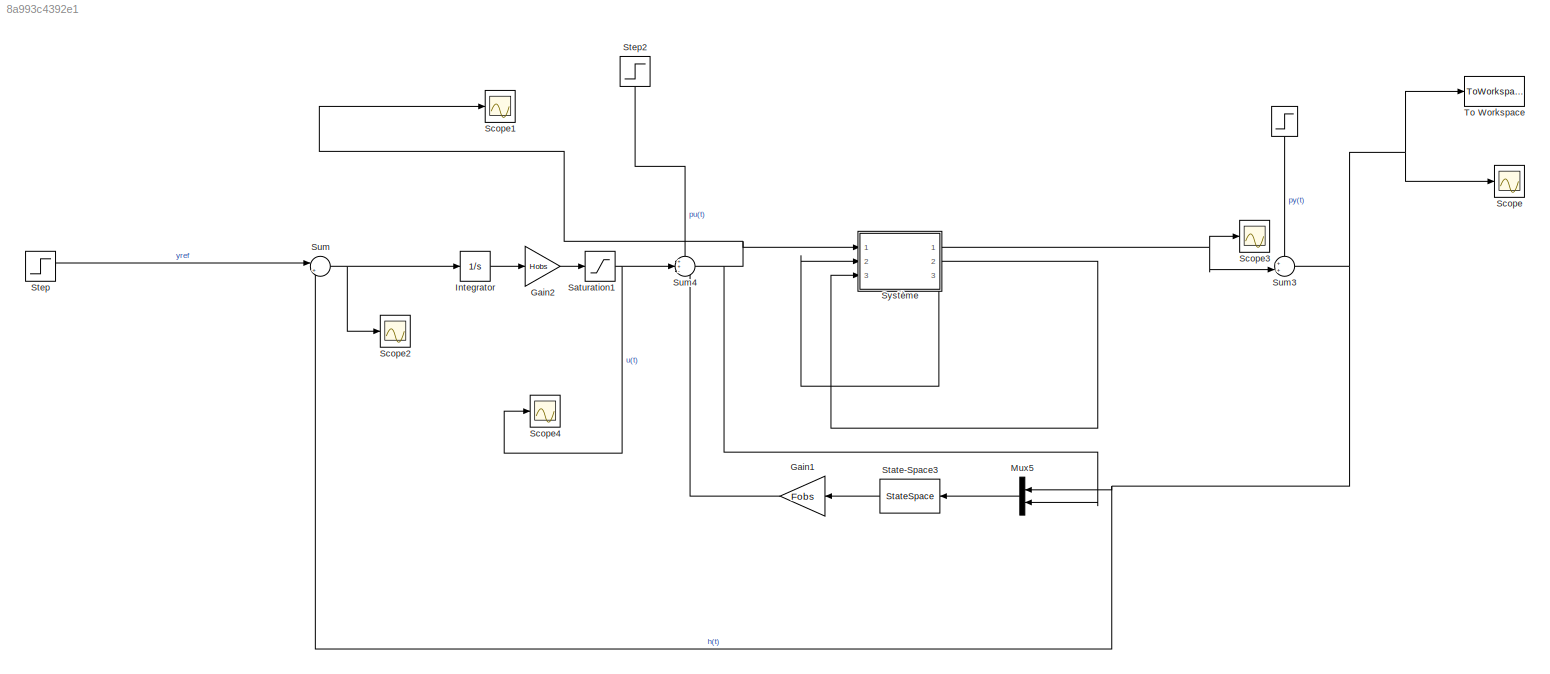
MODEL slx_8a993c4392e1
KIND model
CONFIG AbsTol = auto
CONFIG EnableMultiTasking = off
CONFIG FixedStep = auto
CONFIG MaxStep = auto
CONFIG MinStep = auto
CONFIG RelTol = 1e-3
CONFIG SampleTimeConstraint = Unconstrained
CONFIG Solver = VariableStepAuto
CONFIG SolverName = VariableStepAuto
CONFIG StartTime = 0.0
CONFIG StopTime = 50
BLOCK [Step]  
  After = 0.1
  SampleTime = 0
  Time = 10
BLOCK [Gain] Gain1
  Gain = Fobs
  Multiplication = Matrix(K*u)
  OutDataTypeStr = Inherit: Inherit via internal rule
  ParamDataTypeStr = Inherit: Inherit via internal rule
  SaturateOnIntegerOverflow = off
BLOCK [Gain] Gain2
  Gain = Hobs
  OutDataTypeStr = Inherit: Inherit via internal rule
  ParamDataTypeStr = Inherit: Inherit via internal rule
  SaturateOnIntegerOverflow = off
BLOCK [Integrator] Integrator
  Ports = [1, 1]
BLOCK [Mux] Mux5
  DisplayOption = bar
  Inputs = 2
  Ports = [2, 1]
BLOCK [Saturate] Saturation1
  Commented = through
  InputPortMap = u0
  LowerLimit = -10
  Ports = [1, 1]
  UpperLimit = 10
BLOCK [Scope] Scope
  Floating = off
  NumInputPorts = 1
  Ports = [1]
  ScopeSpecificationString = Simulink.scopes.TimeScopeBlockCfg('CurrentConfiguration', extmgr.ConfigurationSet(extmgr.Configuration('Core','General UI',true,'FigureColor',[0.941176470588235 0.941176470588235 0.941176470588235]),extmgr.Configuration('Core','Source UI',true),extmgr.Configuration('Sources','WiredSimulink',true,'DataLoggingVariableName','ScopeData1'),extmgr.Configuration('Visuals','Time Domain',true,'SerializedDi...<+1753ch>
BLOCK [Scope] Scope1
  Floating = off
  NumInputPorts = 1
  Ports = [1]
  ScopeSpecificationString = Simulink.scopes.TimeScopeBlockCfg('CurrentConfiguration', extmgr.ConfigurationSet(extmgr.Configuration('Core','General UI',true),extmgr.Configuration('Core','Source UI',true),extmgr.Configuration('Sources','WiredSimulink',true),extmgr.Configuration('Visuals','Time Domain',true,'SerializedDisplays',{struct('MinYLimReal','-28.57773','MaxYLimReal','6.96777','YLabelReal','','MinYLimMag','0.00000','Max...<+1347ch>
BLOCK [Scope] Scope2
  Floating = off
  NumInputPorts = 1
  Ports = [1]
  ScopeSpecificationString = Simulink.scopes.TimeScopeBlockCfg('CurrentConfiguration', extmgr.ConfigurationSet(extmgr.Configuration('Core','General UI',true),extmgr.Configuration('Core','Source UI',true),extmgr.Configuration('Sources','WiredSimulink',true,'DataLoggingVariableName','ScopeData1'),extmgr.Configuration('Visuals','Time Domain',true,'SerializedDisplays',{struct('MinYLimReal','-0.47128','MaxYLimReal','1.17153','YLab...<+1362ch>
BLOCK [Scope] Scope3
  Floating = off
  NumInputPorts = 1
  Ports = [1]
  ScopeSpecificationString = Simulink.scopes.TimeScopeBlockCfg('CurrentConfiguration', extmgr.ConfigurationSet(extmgr.Configuration('Core','General UI',true),extmgr.Configuration('Core','Source UI',true),extmgr.Configuration('Sources','WiredSimulink',true,'DataLoggingVariableName','ScopeData3'),extmgr.Configuration('Visuals','Time Domain',true,'SerializedDisplays',{struct('MinYLimReal','-0.17153','MaxYLimReal','1.47128','YLab...<+1371ch>
BLOCK [Scope] Scope4
  Floating = off
  NumInputPorts = 1
  Ports = [1]
  ScopeSpecificationString = Simulink.scopes.TimeScopeBlockCfg('CurrentConfiguration', extmgr.ConfigurationSet(extmgr.Configuration('Core','General UI',true),extmgr.Configuration('Core','Source UI',true),extmgr.Configuration('Sources','WiredSimulink',true,'DataLoggingVariableName','ScopeData2'),extmgr.Configuration('Visuals','Time Domain',true,'SerializedDisplays',{struct('MinYLimReal','-28.8088','MaxYLimReal','259.27921','YL...<+1371ch>
BLOCK [StateSpace] State-Space3
  A = A-L*C
  B = [L B]
  C = eye(3)
  D = zeros(3,2)
  InitialCondition = [0.1;0.1;0.1]
  Ports = [1, 1]
BLOCK [Step] Step
  SampleTime = 0
  Time = 0
BLOCK [Step] Step2
  After = 0.1
  SampleTime = 0
  Time = 0
BLOCK [Sum] Sum
  IconShape = round
  InputSameDT = off
  Inputs = |+-
  OutDataTypeStr = Inherit: Inherit via internal rule
  Ports = [2, 1]
  SaturateOnIntegerOverflow = off
BLOCK [Sum] Sum3
  IconShape = round
  InputSameDT = off
  Inputs = ++|
  OutDataTypeStr = Inherit: Inherit via internal rule
  Ports = [2, 1]
  SaturateOnIntegerOverflow = off
BLOCK [Sum] Sum4
  IconShape = round
  InputSameDT = off
  Inputs = ++-
  OutDataTypeStr = Inherit: Inherit via internal rule
  Ports = [3, 1]
  SaturateOnIntegerOverflow = off
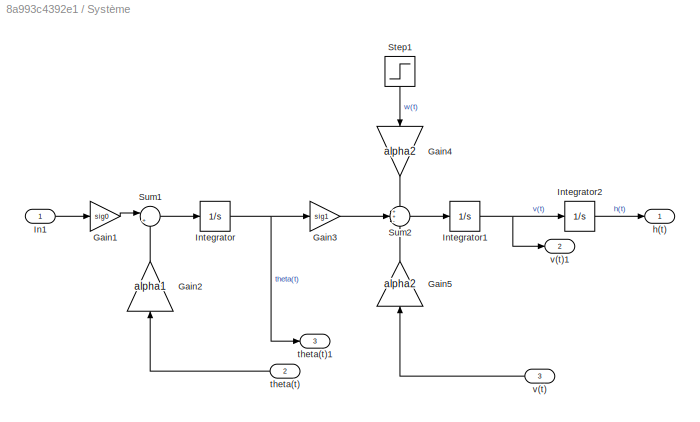
BLOCK [SubSystem] Système
  Ports = [3, 3]
  RequestExecContextInheritance = off
BLOCK [Gain] Système/Gain1
  Gain = sig0
  OutDataTypeStr = Inherit: Inherit via internal rule
  ParamDataTypeStr = Inherit: Inherit via internal rule
  SaturateOnIntegerOverflow = off
BLOCK [Gain] Système/Gain2
  Gain = alpha1
  OutDataTypeStr = Inherit: Inherit via internal rule
  ParamDataTypeStr = Inherit: Inherit via internal rule
  SaturateOnIntegerOverflow = off
BLOCK [Gain] Système/Gain3
  Gain = sig1
  OutDataTypeStr = Inherit: Inherit via internal rule
  ParamDataTypeStr = Inherit: Inherit via internal rule
  SaturateOnIntegerOverflow = off
BLOCK [Gain] Système/Gain4
  Gain = alpha2
  OutDataTypeStr = Inherit: Inherit via internal rule
  ParamDataTypeStr = Inherit: Inherit via internal rule
  SaturateOnIntegerOverflow = off
BLOCK [Gain] Système/Gain5
  Gain = alpha2
  OutDataTypeStr = Inherit: Inherit via internal rule
  ParamDataTypeStr = Inherit: Inherit via internal rule
  SaturateOnIntegerOverflow = off
BLOCK [Inport] Système/In1
  IconDisplay = Port number
BLOCK [Integrator] Système/Integrator
  Ports = [1, 1]
BLOCK [Integrator] Système/Integrator1
  Ports = [1, 1]
BLOCK [Integrator] Système/Integrator2
  Ports = [1, 1]
BLOCK [Step] Système/Step1
  After = 0.01
  SampleTime = 0
  Time = 0
BLOCK [Sum] Système/Sum1
  IconShape = round
  InputSameDT = off
  Inputs = |+-
  OutDataTypeStr = Inherit: Inherit via internal rule
  Ports = [2, 1]
  SaturateOnIntegerOverflow = off
BLOCK [Sum] Système/Sum2
  IconShape = round
  InputSameDT = off
  Inputs = ++-
  OutDataTypeStr = Inherit: Inherit via internal rule
  Ports = [3, 1]
  SaturateOnIntegerOverflow = off
BLOCK [Outport] Système/h(t)
  IconDisplay = Port number
BLOCK [Inport] Système/theta(t)
  IconDisplay = Port number
  Port = 2
BLOCK [Outport] Système/theta(t)1
  IconDisplay = Port number
  Port = 3
BLOCK [Inport] Système/v(t)
  IconDisplay = Port number
  Port = 3
BLOCK [Outport] Système/v(t)1
  IconDisplay = Port number
  Port = 2
BLOCK [ToWorkspace] To Workspace
  FixptAsFi = on
  MaxDataPoints = inf
  Ports = [1]
  SampleTime = -1
  Save2DSignal = 3-D array (concatenate along third dimension)
  SaveFormat = Structure With Time
  VariableName = hre
LINE  :1 -> Sum3:1
LINE Gain1:1 -> Sum4:3
LINE Gain2:1 -> Saturation1:1
LINE Integrator:1 -> Gain2:1
LINE Mux5:1 -> State-Space3:1
NET Saturation1:1 -> Scope4:1, Sum4:2
LINE State-Space3:1 -> Gain1:1
LINE Step2:1 -> Sum4:1
LINE Step:1 -> Sum:1
NET Sum3:1 -> Mux5:1, Scope:1, Sum:2, To Workspace:1
NET Sum4:1 -> Mux5:2, Scope1:1, Système:1
NET Sum:1 -> Integrator:1, Scope2:1
LINE Système/Gain1:1 -> Système/Sum1:1
LINE Système/Gain2:1 -> Système/Sum1:2
LINE Système/Gain3:1 -> Système/Sum2:2
LINE Système/Gain4:1 -> Système/Sum2:1
LINE Système/Gain5:1 -> Système/Sum2:3
LINE Système/In1:1 -> Système/Gain1:1
NET Système/Integrator1:1 -> Système/Integrator2:1, Système/v(t)1:1
LINE Système/Integrator2:1 -> Système/h(t):1
NET Système/Integrator:1 -> Système/Gain3:1, Système/theta(t)1:1
LINE Système/Step1:1 -> Système/Gain4:1
LINE Système/Sum1:1 -> Système/Integrator:1
LINE Système/Sum2:1 -> Système/Integrator1:1
LINE Système/theta(t):1 -> Système/Gain2:1
LINE Système/v(t):1 -> Système/Gain5:1
NET Système:1 -> Scope3:1, Sum3:2
LINE Système:2 -> Système:3
LINE Système:3 -> Système:2
note: NET lines group one-source signal fan-out (src -> all destinations, sorted); 1:1 wires keep LINE
